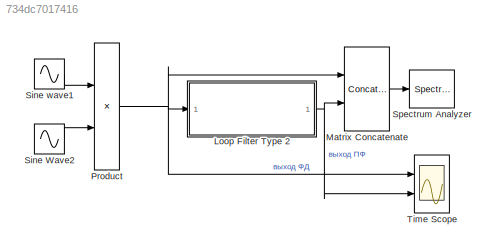
MODEL slx_734dc7017416
KIND model
CONFIG AbsTol = auto
CONFIG EnableMultiTasking = on
CONFIG FixedStep = auto
CONFIG MaxStep = auto
CONFIG MinStep = auto
CONFIG PreLoadFcn = fs=100e6;\ntime_span=32e-6;
CONFIG RelTol = 1e-3
CONFIG SampleTimeConstraint = Unconstrained
CONFIG Solver = VariableStepAuto
CONFIG SolverName = VariableStepAuto
CONFIG StartTime = 0.0
CONFIG StopTime = time_span
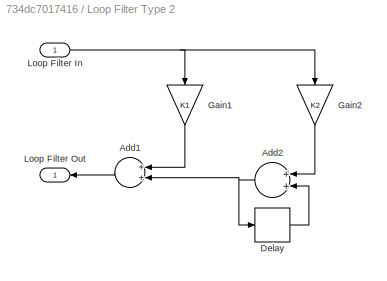
BLOCK [SubSystem] Loop Filter Type 2
  Ports = [1, 1]
  RequestExecContextInheritance = off
BLOCK [Sum] Loop Filter Type 2/Add1
  InputSameDT = off
  OutDataTypeStr = Inherit: Inherit via internal rule
  Ports = [2, 1]
  SaturateOnIntegerOverflow = off
BLOCK [Sum] Loop Filter Type 2/Add2
  InputSameDT = off
  OutDataTypeStr = Inherit: Inherit via internal rule
  Ports = [2, 1]
  SaturateOnIntegerOverflow = off
BLOCK [Delay] Loop Filter Type 2/Delay
  DelayLength = 1
  InitialCondition = 0
  InputPortMap = u0
  Ports = [1, 1]
BLOCK [Gain] Loop Filter Type 2/Gain1
  Gain = K1
  OutDataTypeStr = Inherit: Inherit via internal rule
  ParamDataTypeStr = Inherit: Inherit via internal rule
  SaturateOnIntegerOverflow = off
BLOCK [Gain] Loop Filter Type 2/Gain2
  Gain = K2
  OutDataTypeStr = Inherit: Inherit via internal rule
  ParamDataTypeStr = Inherit: Inherit via internal rule
  SaturateOnIntegerOverflow = off
BLOCK [Inport] Loop Filter Type 2/Loop Filter In
  IconDisplay = Port number
BLOCK [Outport] Loop Filter Type 2/Loop Filter Out
  IconDisplay = Port number
BLOCK [Concatenate] Matrix Concatenate
  ConcatenateDimension = 2
  Mode = Multidimensional array
  Ports = [2, 1]
BLOCK [Product] Product
  InputSameDT = off
  OutDataTypeStr = Inherit: Inherit via internal rule
  Ports = [2, 1]
  RndMeth = Floor
  SaturateOnIntegerOverflow = off
BLOCK [Sin] Sine Wave2
  Frequency = 2*pi*(fs*1.0/20)
  Phase = pi/3
  Ports = [0, 1]
  SampleTime = 1/fs
BLOCK [Sin] Sine wave1
  Frequency = 2*pi*(fs/20)
  Ports = [0, 1]
  SampleTime = 1/fs
BLOCK [SpectrumAnalyzer] Spectrum Analyzer
  Ports = [1]
  ScopeSpecificationString = spbscopes.SpectrumAnalyzerBlockCfg('CurrentConfiguration', extmgr.ConfigurationSet(extmgr.Configuration('Core','General UI',true,'ShowMainToolbar',false,'ShowStatusbar',false,'FigureColor',[1 1 1]),extmgr.Configuration('Core','Source UI',true),extmgr.Configuration('Sources','WiredSimulink',true),extmgr.Configuration('Sources','Simulink',false),extmgr.Configuration('Sources','SimulinkEvent',false),...<+3439ch>
BLOCK [Scope] Time Scope
  DefaultConfigurationName = spbscopes.TimeScopeBlockCfg
  Floating = off
  NumInputPorts = 2
  Ports = [2]
  ScopeSpecificationString = spbscopes.TimeScopeBlockCfg('CurrentConfiguration', extmgr.ConfigurationSet(extmgr.Configuration('Core','General UI',true,'ShowMainToolbar',false,'ShowStatusbar',false,'FigureColor',[1 1 1]),extmgr.Configuration('Core','Source UI',true),extmgr.Configuration('Sources','WiredSimulink',true),extmgr.Configuration('Visuals','Time Domain',true,'DisplayLayoutDimensions',[2 1],'DisplayPropertyDefaults',st...<+2253ch>
  UserDataPersistent = on
LINE Loop Filter Type 2/Add1:1 -> Loop Filter Type 2/Loop Filter Out:1
NET Loop Filter Type 2/Add2:1 -> Loop Filter Type 2/Add1:2, Loop Filter Type 2/Delay:1
LINE Loop Filter Type 2/Delay:1 -> Loop Filter Type 2/Add2:2
LINE Loop Filter Type 2/Gain1:1 -> Loop Filter Type 2/Add1:1
LINE Loop Filter Type 2/Gain2:1 -> Loop Filter Type 2/Add2:1
NET Loop Filter Type 2/Loop Filter In:1 -> Loop Filter Type 2/Gain1:1, Loop Filter Type 2/Gain2:1
NET Loop Filter Type 2:1 -> Matrix Concatenate:2, Time Scope:2
LINE Matrix Concatenate:1 -> Spectrum Analyzer:1
NET Product:1 -> Loop Filter Type 2:1, Matrix Concatenate:1, Time Scope:1
LINE Sine Wave2:1 -> Product:2
LINE Sine wave1:1 -> Product:1
note: NET lines group one-source signal fan-out (src -> all destinations, sorted); 1:1 wires keep LINE
